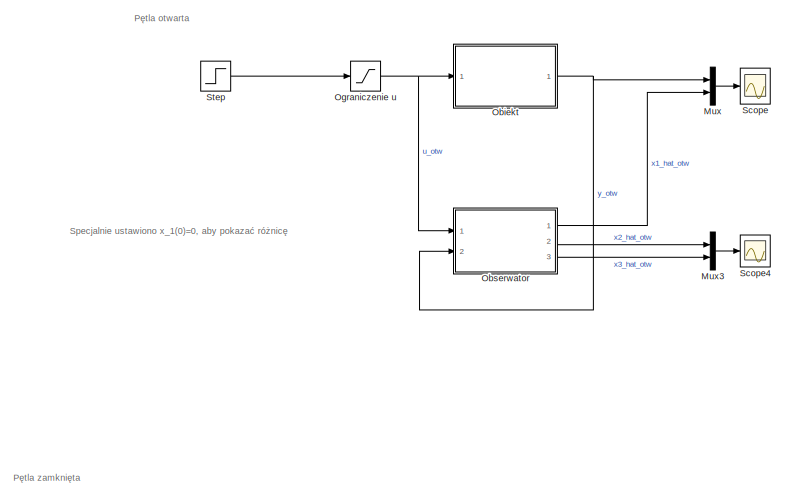
[diagram: root canvas - part 1/3, top center region]
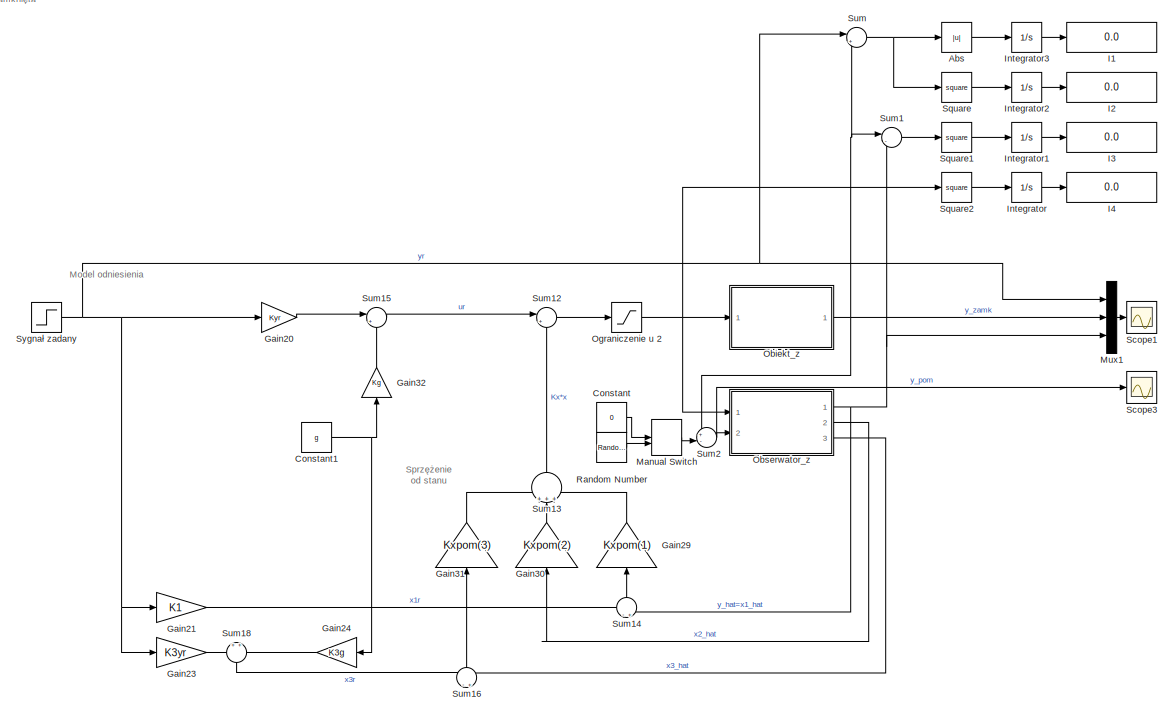
[diagram: root canvas - part 2/3, full width, middle band]
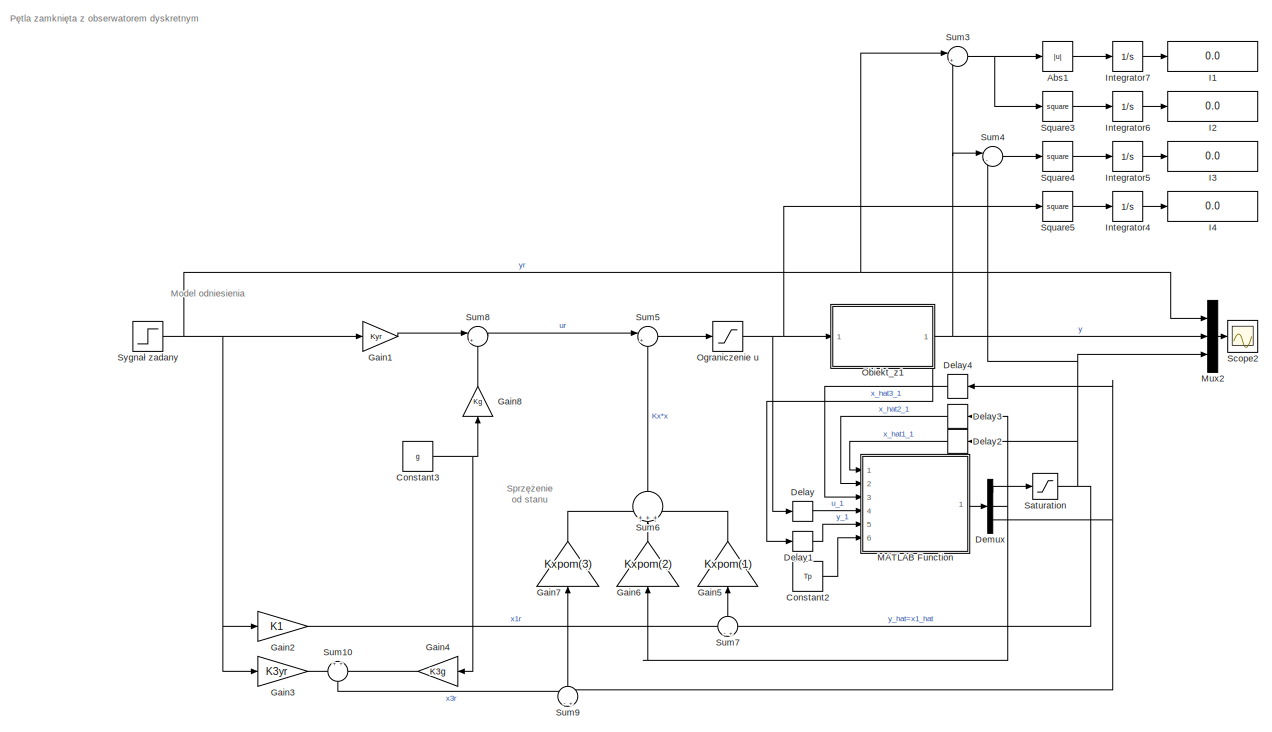
[diagram: root canvas - part 3/3, full width, bottom band]
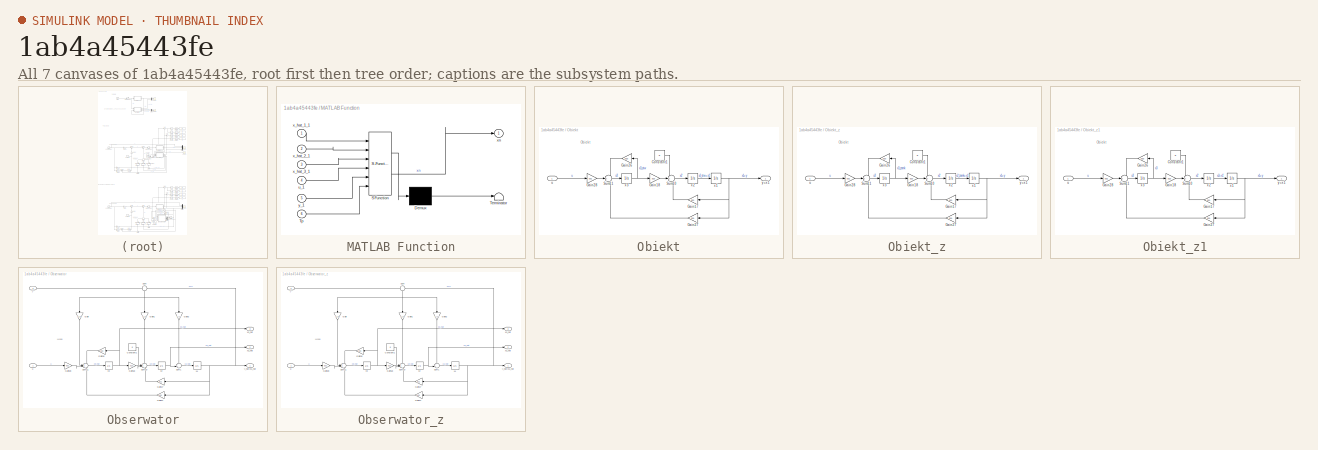
[diagram: thumbnail index - all 7 canvases of the model, root first then tree order]
MODEL slx_1ab4a45443fe
KIND model
CONFIG AbsTol = auto
CONFIG EnableMultiTasking = off
CONFIG FixedStep = auto
CONFIG MaxStep = auto
CONFIG MinStep = auto
CONFIG RelTol = 1e-3
CONFIG SampleTimeConstraint = Unconstrained
CONFIG SolverName = VariableStepAuto
CONFIG StartTime = 0.0
CONFIG StopTime = 10.0
WORKSPACE source: mxarray member
WORKSPACE A = [0 3198.8547998 0 1 0 0 0 -49.6726703592 -186.260159523]
WORKSPACE B = [0 0 468.723691441 0 9.81 0]
WORKSPACE C = [1 0 0]
WORKSPACE D = [0 0]
WORKSPACE L = [113.739840477 12013.6539685 12921.50985]
WORKSPACE Tp = 0.01
BLOCK [Step]  Sygnał zadany
  After = 0.008
  SampleTime = 0
  Time = 0
BLOCK [Step]  Sygnał zadany  
  After = 0.008
  SampleTime = 0
  Time = 0
BLOCK [Abs] Abs
  SaturateOnIntegerOverflow = off
BLOCK [Abs] Abs1
  SaturateOnIntegerOverflow = off
BLOCK [Constant] Constant
  Value = 0
BLOCK [Constant] Constant1
  Value = g
BLOCK [Constant] Constant2
  Value = Tp
BLOCK [Constant] Constant3
  Value = g
BLOCK [Delay] Delay
  DelayLength = 1
  InputPortMap = u0
  Ports = [1, 1]
BLOCK [Delay] Delay1
  DelayLength = 1
  InputPortMap = u0
  Ports = [1, 1]
BLOCK [Delay] Delay2
  DelayLength = 1
  InitialCondition = xd
  InputPortMap = u0
  NameLocation = top
  Ports = [1, 1]
BLOCK [Delay] Delay3
  DelayLength = 1
  InputPortMap = u0
  NameLocation = top
  Ports = [1, 1]
BLOCK [Delay] Delay4
  DelayLength = 1
  InputPortMap = u0
  NameLocation = top
  Ports = [1, 1]
BLOCK [Demux] Demux
  Outputs = 3
  Ports = [1, 3]
BLOCK [Gain] Gain1
  Gain = Kyr
BLOCK [Gain] Gain2
  Gain = K1
BLOCK [Gain] Gain20
  Gain = Kyr
BLOCK [Gain] Gain21
  Gain = K1
BLOCK [Gain] Gain23
  Gain = K3yr
BLOCK [Gain] Gain24
  Gain = K3g
  NameLocation = top
BLOCK [Gain] Gain29
  Gain = Kxpom(1)
  NameLocation = right
BLOCK [Gain] Gain3
  Gain = K3yr
BLOCK [Gain] Gain30
  Gain = Kxpom(2)
  NameLocation = right
BLOCK [Gain] Gain31
  Gain = Kxpom(3)
  NameLocation = right
BLOCK [Gain] Gain32
  Gain = Kg
  NameLocation = right
BLOCK [Gain] Gain4
  Gain = K3g
  NameLocation = top
BLOCK [Gain] Gain5
  Gain = Kxpom(1)
  NameLocation = right
BLOCK [Gain] Gain6
  Gain = Kxpom(2)
  NameLocation = right
BLOCK [Gain] Gain7
  Gain = Kxpom(3)
  NameLocation = right
BLOCK [Gain] Gain8
  Gain = Kg
  NameLocation = right
BLOCK [Display] I1
  Decimation = 1
  Ports = [1]
BLOCK [Display] I1 
  Decimation = 1
  Ports = [1]
BLOCK [Display] I2
  Decimation = 1
  Ports = [1]
BLOCK [Display] I2 
  Decimation = 1
  Ports = [1]
BLOCK [Display] I3
  Decimation = 1
  Ports = [1]
BLOCK [Display] I3 
  Decimation = 1
  Ports = [1]
BLOCK [Display] I4
  Decimation = 1
  Ports = [1]
BLOCK [Display] I4 
  Decimation = 1
  Ports = [1]
BLOCK [Integrator] Integrator
  Ports = [1, 1]
BLOCK [Integrator] Integrator1
  Ports = [1, 1]
BLOCK [Integrator] Integrator2
  Ports = [1, 1]
BLOCK [Integrator] Integrator3
  Ports = [1, 1]
BLOCK [Integrator] Integrator4
  Ports = [1, 1]
BLOCK [Integrator] Integrator5
  Ports = [1, 1]
BLOCK [Integrator] Integrator6
  Ports = [1, 1]
BLOCK [Integrator] Integrator7
  Ports = [1, 1]
BLOCK [SubSystem] MATLAB Function
  ErrorFcn = Stateflow.Translate.translate
  PermitHierarchicalResolution = ExplicitOnly
  Ports = [6, 1]
  RequestExecContextInheritance = off
  SFBlockType = MATLAB Function
  TreatAsAtomicUnit = on
BLOCK [Demux] MATLAB Function/ Demux 
  Outputs = 1
  Ports = [1, 1]
BLOCK [S-Function] MATLAB Function/ SFunction 
  EnableBusSupport = on
  FunctionName = sf_sfun
  PortCounts = [6 2]
  Ports = [6, 2]
  SFcnIsStateOwnerBlock = off
  SFunctionDeploymentMode = off
  Tag = Stateflow S-Function 2
BLOCK [Terminator] MATLAB Function/ Terminator 
BLOCK [Inport] MATLAB Function/Tp
  Port = 6
BLOCK [Inport] MATLAB Function/u_1
  Port = 4
BLOCK [Inport] MATLAB Function/x_hat_1_1
BLOCK [Inport] MATLAB Function/x_hat_2_1
  Port = 2
BLOCK [Inport] MATLAB Function/x_hat_3_1
  Port = 3
BLOCK [Outport] MATLAB Function/xn
BLOCK [Inport] MATLAB Function/y_1
  Port = 5
BLOCK [ManualSwitch] Manual Switch
  CurrentSetting = 0
BLOCK [Mux] Mux
  DisplayOption = bar
  Inputs = 2
  Ports = [2, 1]
BLOCK [Mux] Mux1
  DisplayOption = bar
  Inputs = 3
  Ports = [3, 1]
BLOCK [Mux] Mux2
  DisplayOption = bar
  Inputs = 3
  Ports = [3, 1]
BLOCK [Mux] Mux3
  DisplayOption = bar
  Inputs = 2
  Ports = [2, 1]
BLOCK [SubSystem] Obiekt
  Ports = [1, 1]
  RequestExecContextInheritance = off
BLOCK [Integrator] Obiekt/ x1
  InitialCondition = xd
  LimitOutput = on
  LowerSaturationLimit = 0
  Ports = [1, 1]
  UpperSaturationLimit = xd
BLOCK [Integrator] Obiekt/ x2
  Ports = [1, 1]
BLOCK [Integrator] Obiekt/ x3
  Ports = [1, 1]
BLOCK [Constant] Obiekt/Constant1
  Value = g
BLOCK [Gain] Obiekt/Gain17
  Gain = a21
  NameLocation = top
BLOCK [Gain] Obiekt/Gain18
  Gain = a23
BLOCK [Gain] Obiekt/Gain26
  Gain = a33
  NameLocation = top
BLOCK [Gain] Obiekt/Gain27
  Gain = a31
  NameLocation = top
BLOCK [Gain] Obiekt/Gain28
  Gain = b31
BLOCK [Sum] Obiekt/Sum10
  Inputs = +++
  Ports = [3, 1]
BLOCK [Sum] Obiekt/Sum11
  Inputs = +++
  Ports = [3, 1]
BLOCK [Inport] Obiekt/u
BLOCK [Outport] Obiekt/y=x1
BLOCK [SubSystem] Obiekt_z
  Ports = [1, 1]
  RequestExecContextInheritance = off
BLOCK [Integrator] Obiekt_z/ x1
  InitialCondition = xd
  LimitOutput = on
  LowerSaturationLimit = 0
  Ports = [1, 1]
  UpperSaturationLimit = xd
BLOCK [Integrator] Obiekt_z/ x2
  Ports = [1, 1]
BLOCK [Integrator] Obiekt_z/ x3
  Ports = [1, 1]
BLOCK [Constant] Obiekt_z/Constant1
  Value = g
BLOCK [Gain] Obiekt_z/Gain17
  Gain = a21
  NameLocation = top
BLOCK [Gain] Obiekt_z/Gain18
  Gain = a23
BLOCK [Gain] Obiekt_z/Gain26
  Gain = a33
  NameLocation = top
BLOCK [Gain] Obiekt_z/Gain27
  Gain = a31
  NameLocation = top
BLOCK [Gain] Obiekt_z/Gain28
  Gain = b31
BLOCK [Sum] Obiekt_z/Sum10
  Inputs = +++
  Ports = [3, 1]
BLOCK [Sum] Obiekt_z/Sum11
  Inputs = +++
  Ports = [3, 1]
BLOCK [Inport] Obiekt_z/u
BLOCK [Outport] Obiekt_z/y=x1
BLOCK [SubSystem] Obiekt_z1
  Ports = [1, 1]
  RequestExecContextInheritance = off
BLOCK [Integrator] Obiekt_z1/ x1
  InitialCondition = xd
  LimitOutput = on
  LowerSaturationLimit = 0
  Ports = [1, 1]
  UpperSaturationLimit = xd
BLOCK [Integrator] Obiekt_z1/ x2
  Ports = [1, 1]
BLOCK [Integrator] Obiekt_z1/ x3
  Ports = [1, 1]
BLOCK [Constant] Obiekt_z1/Constant1
  Value = g
BLOCK [Gain] Obiekt_z1/Gain17
  Gain = a21
  NameLocation = top
BLOCK [Gain] Obiekt_z1/Gain18
  Gain = a23
BLOCK [Gain] Obiekt_z1/Gain26
  Gain = a33
  NameLocation = top
BLOCK [Gain] Obiekt_z1/Gain27
  Gain = a31
  NameLocation = top
BLOCK [Gain] Obiekt_z1/Gain28
  Gain = b31
BLOCK [Sum] Obiekt_z1/Sum10
  Inputs = +++
  Ports = [3, 1]
BLOCK [Sum] Obiekt_z1/Sum11
  Inputs = +++
  Ports = [3, 1]
BLOCK [Inport] Obiekt_z1/u
BLOCK [Outport] Obiekt_z1/y=x1
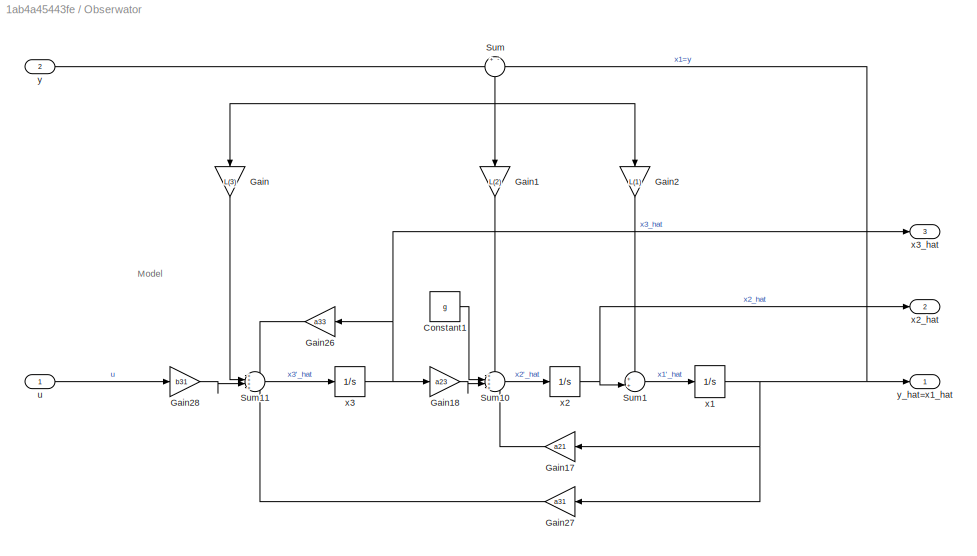
BLOCK [SubSystem] Obserwator
  Ports = [2, 3]
  RequestExecContextInheritance = off
BLOCK [Integrator] Obserwator/ x1
  LimitOutput = on
  LowerSaturationLimit = 0
  Ports = [1, 1]
  UpperSaturationLimit = xd
BLOCK [Integrator] Obserwator/ x2
  Ports = [1, 1]
BLOCK [Integrator] Obserwator/ x3
  Ports = [1, 1]
BLOCK [Constant] Obserwator/Constant1
  Value = g
BLOCK [Gain] Obserwator/Gain
  Gain = L(3)
  NameLocation = left
BLOCK [Gain] Obserwator/Gain1
  Gain = L(2)
  NameLocation = left
BLOCK [Gain] Obserwator/Gain17
  Gain = a21
  NameLocation = top
BLOCK [Gain] Obserwator/Gain18
  Gain = a23
BLOCK [Gain] Obserwator/Gain2
  Gain = L(1)
  NameLocation = left
BLOCK [Gain] Obserwator/Gain26
  Gain = a33
  NameLocation = top
BLOCK [Gain] Obserwator/Gain27
  Gain = a31
  NameLocation = top
BLOCK [Gain] Obserwator/Gain28
  Gain = b31
BLOCK [Sum] Obserwator/Sum
  Inputs = +-
  NameLocation = left
  Ports = [2, 1]
BLOCK [Sum] Obserwator/Sum1
  Inputs = ++|
  Ports = [2, 1]
BLOCK [Sum] Obserwator/Sum10
  Inputs = ++++
  Ports = [4, 1]
BLOCK [Sum] Obserwator/Sum11
  Inputs = ++++
  Ports = [4, 1]
BLOCK [Inport] Obserwator/u
BLOCK [Outport] Obserwator/x2_hat
  Port = 2
BLOCK [Outport] Obserwator/x3_hat
  Port = 3
BLOCK [Inport] Obserwator/y
  Port = 2
BLOCK [Outport] Obserwator/y_hat=x1_hat
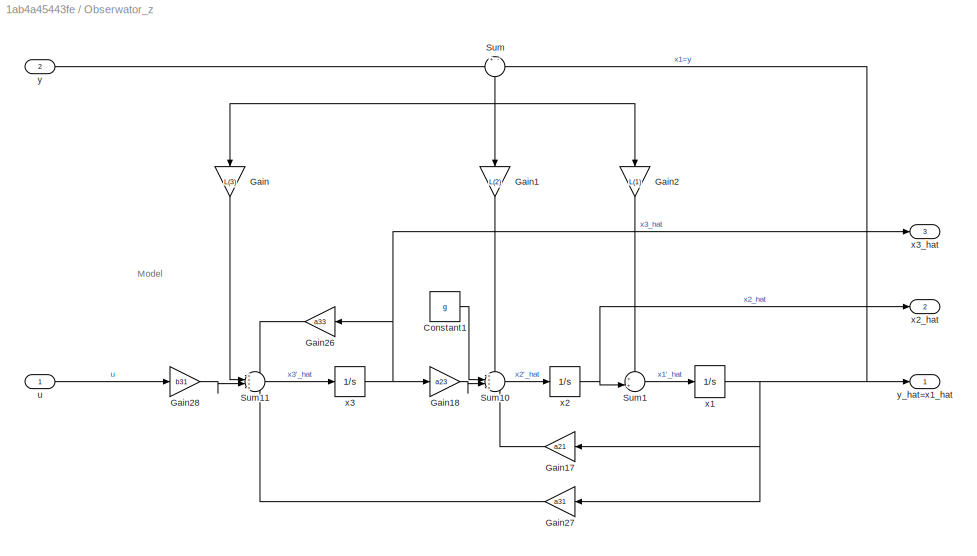
BLOCK [SubSystem] Obserwator_z
  Ports = [2, 3]
  RequestExecContextInheritance = off
BLOCK [Integrator] Obserwator_z/ x1
  InitialCondition = xd
  LimitOutput = on
  LowerSaturationLimit = 0
  Ports = [1, 1]
  UpperSaturationLimit = xd
BLOCK [Integrator] Obserwator_z/ x2
  Ports = [1, 1]
BLOCK [Integrator] Obserwator_z/ x3
  Ports = [1, 1]
BLOCK [Constant] Obserwator_z/Constant1
  Value = g
BLOCK [Gain] Obserwator_z/Gain
  Gain = L(3)
  NameLocation = left
BLOCK [Gain] Obserwator_z/Gain1
  Gain = L(2)
  NameLocation = left
BLOCK [Gain] Obserwator_z/Gain17
  Gain = a21
  NameLocation = top
BLOCK [Gain] Obserwator_z/Gain18
  Gain = a23
BLOCK [Gain] Obserwator_z/Gain2
  Gain = L(1)
  NameLocation = left
BLOCK [Gain] Obserwator_z/Gain26
  Gain = a33
  NameLocation = top
BLOCK [Gain] Obserwator_z/Gain27
  Gain = a31
  NameLocation = top
BLOCK [Gain] Obserwator_z/Gain28
  Gain = b31
BLOCK [Sum] Obserwator_z/Sum
  Inputs = +-
  NameLocation = left
  Ports = [2, 1]
BLOCK [Sum] Obserwator_z/Sum1
  Inputs = ++|
  Ports = [2, 1]
BLOCK [Sum] Obserwator_z/Sum10
  Inputs = ++++
  Ports = [4, 1]
BLOCK [Sum] Obserwator_z/Sum11
  Inputs = ++++
  Ports = [4, 1]
BLOCK [Inport] Obserwator_z/u
BLOCK [Outport] Obserwator_z/x2_hat
  Port = 2
BLOCK [Outport] Obserwator_z/x3_hat
  Port = 3
BLOCK [Inport] Obserwator_z/y
  Port = 2
BLOCK [Outport] Obserwator_z/y_hat=x1_hat
BLOCK [Saturate] Ograniczenie u 
  LowerLimit = 0
  UpperLimit = 1
  ZeroCross = off
BLOCK [Saturate] Ograniczenie u  
  LowerLimit = 0
  UpperLimit = 1
  ZeroCross = off
BLOCK [Saturate] Ograniczenie u 2
  LowerLimit = 0
  UpperLimit = 1
  ZeroCross = off
BLOCK [RandomNumber] Random Number
  SampleTime = 0.0001
  Variance = 0.0000001
BLOCK [Saturate] Saturation
  LowerLimit = 0
  UpperLimit = xd
BLOCK [Scope] Scope
  Floating = off
  NumInputPorts = 1
  Ports = [1]
  ScopeSpecificationString = Simulink.scopes.TimeScopeBlockCfg('CurrentConfiguration', extmgr.ConfigurationSet(extmgr.Configuration('Core','General UI',true),extmgr.Configuration('Core','Source UI',true),extmgr.Configuration('Sources','WiredSimulink',true),extmgr.Configuration('Visuals','Time Domain',true,'SerializedDisplays',{struct('MinYLimReal','-0.00166','MaxYLimReal','0.01492','YLabelReal','','MinYLimMag','0.00000','MaxY...<+1411ch>
BLOCK [Scope] Scope1
  Floating = off
  NumInputPorts = 1
  Ports = [1]
  ScopeSpecificationString = Simulink.scopes.TimeScopeBlockCfg('CurrentConfiguration', extmgr.ConfigurationSet(extmgr.Configuration('Core','General UI',true),extmgr.Configuration('Core','Source UI',true),extmgr.Configuration('Sources','WiredSimulink',true,'DataLoggingVariableName','ScopeData1'),extmgr.Configuration('Visuals','Time Domain',true,'SerializedDisplays',{struct('MinYLimReal','0.00682','MaxYLimReal','0.01398','YLabe...<+1456ch>
BLOCK [Scope] Scope2
  Floating = off
  NumInputPorts = 1
  Ports = [1]
  ScopeSpecificationString = Simulink.scopes.TimeScopeBlockCfg('CurrentConfiguration', extmgr.ConfigurationSet(extmgr.Configuration('Core','General UI',true),extmgr.Configuration('Core','Source UI',true),extmgr.Configuration('Sources','WiredSimulink',true,'DataLoggingVariableName','ScopeData1'),extmgr.Configuration('Visuals','Time Domain',true,'SerializedDisplays',{struct('MinYLimReal','0.00761','MaxYLimReal','0.01358','YLabe...<+1451ch>
BLOCK [Scope] Scope3
  Floating = off
  NumInputPorts = 1
  Ports = [1]
  ScopeSpecificationString = Simulink.scopes.TimeScopeBlockCfg('CurrentConfiguration', extmgr.ConfigurationSet(extmgr.Configuration('Core','General UI',true),extmgr.Configuration('Core','Source UI',true),extmgr.Configuration('Sources','WiredSimulink',true,'DataLoggingVariableName','ScopeData1'),extmgr.Configuration('Visuals','Time Domain',true,'SerializedDisplays',{struct('MinYLimReal','0.0053','MaxYLimReal','0.01515','YLabel...<+1406ch>
BLOCK [Scope] Scope4
  Floating = off
  NumInputPorts = 1
  Ports = [1]
  ScopeSpecificationString = Simulink.scopes.TimeScopeBlockCfg('CurrentConfiguration', extmgr.ConfigurationSet(extmgr.Configuration('Core','General UI',true),extmgr.Configuration('Core','Source UI',true),extmgr.Configuration('Sources','WiredSimulink',true,'DataLoggingVariableName','ScopeData1'),extmgr.Configuration('Visuals','Time Domain',true,'SerializedDisplays',{struct('MinYLimReal','-1294.17655','MaxYLimReal','146.59351',...<+1402ch>
BLOCK [Math] Square
  Operator = square
  Ports = [1, 1]
BLOCK [Math] Square1
  Operator = square
  Ports = [1, 1]
BLOCK [Math] Square2
  Operator = square
  Ports = [1, 1]
BLOCK [Math] Square3
  Operator = square
  Ports = [1, 1]
BLOCK [Math] Square4
  Operator = square
  Ports = [1, 1]
BLOCK [Math] Square5
  Operator = square
  Ports = [1, 1]
BLOCK [Step] Step
  SampleTime = 0
  Time = 0
BLOCK [Sum] Sum
  Inputs = |+-
  Ports = [2, 1]
BLOCK [Sum] Sum1
  Inputs = |-+
  Ports = [2, 1]
BLOCK [Sum] Sum10
  NameLocation = left
  Ports = [2, 1]
BLOCK [Sum] Sum12
  Inputs = |+-
  Ports = [2, 1]
BLOCK [Sum] Sum13
  Inputs = +++
  NameLocation = right
  Ports = [3, 1]
BLOCK [Sum] Sum14
  Inputs = -+
  NameLocation = right
  Ports = [2, 1]
BLOCK [Sum] Sum15
  Inputs = |++
  Ports = [2, 1]
BLOCK [Sum] Sum16
  Inputs = -+
  NameLocation = right
  Ports = [2, 1]
BLOCK [Sum] Sum18
  NameLocation = left
  Ports = [2, 1]
BLOCK [Sum] Sum2
  Inputs = +-|
  Ports = [2, 1]
BLOCK [Sum] Sum3
  Inputs = |+-
  Ports = [2, 1]
BLOCK [Sum] Sum4
  Inputs = |-+
  Ports = [2, 1]
BLOCK [Sum] Sum5
  Inputs = |+-
  Ports = [2, 1]
BLOCK [Sum] Sum6
  Inputs = +++
  NameLocation = right
  Ports = [3, 1]
BLOCK [Sum] Sum7
  Inputs = -+
  NameLocation = right
  Ports = [2, 1]
BLOCK [Sum] Sum8
  Inputs = |++
  Ports = [2, 1]
BLOCK [Sum] Sum9
  Inputs = -+
  NameLocation = right
  Ports = [2, 1]
ANNOTATION (root): Model odniesienia
ANNOTATION (root): Pętla otwarta
ANNOTATION (root): Pętla zamknięta
ANNOTATION (root): Pętla zamknięta z obserwatorem dyskretnym
ANNOTATION (root): Specjalnie ustawiono x_1(0)=0, aby pokazać różnicę
ANNOTATION (root): Sprzężenie od stanu
ANNOTATION Obiekt: Obiekt
ANNOTATION Obiekt_z: Obiekt
ANNOTATION Obiekt_z1: Obiekt
ANNOTATION Obserwator: Model
ANNOTATION Obserwator_z: Model
NET  Sygnał zadany  :1 -> Gain1:1, Gain2:1, Gain3:1, Mux2:1, Sum3:1
NET  Sygnał zadany:1 -> Gain20:1, Gain21:1, Gain23:1, Mux1:1, Sum:1
LINE Abs1:1 -> Integrator7:1
LINE Abs:1 -> Integrator3:1
NET Constant1:1 -> Gain24:1, Gain32:1
LINE Constant2:1 -> MATLAB Function:6
NET Constant3:1 -> Gain4:1, Gain8:1
LINE Constant:1 -> Manual Switch:1
LINE Delay1:1 -> MATLAB Function:5
LINE Delay2:1 -> MATLAB Function:1
LINE Delay3:1 -> MATLAB Function:2
LINE Delay4:1 -> MATLAB Function:3
LINE Delay:1 -> MATLAB Function:4
LINE Demux:1 -> Saturation:1
NET Demux:2 -> Delay3:1, Gain6:1
NET Demux:3 -> Delay4:1, Sum9:2
LINE Gain1:1 -> Sum8:1
LINE Gain20:1 -> Sum15:1
LINE Gain21:1 -> Sum14:1
LINE Gain23:1 -> Sum18:1
LINE Gain24:1 -> Sum18:2
LINE Gain29:1 -> Sum13:3
LINE Gain2:1 -> Sum7:1
LINE Gain30:1 -> Sum13:2
LINE Gain31:1 -> Sum13:1
LINE Gain32:1 -> Sum15:2
LINE Gain3:1 -> Sum10:1
LINE Gain4:1 -> Sum10:2
LINE Gain5:1 -> Sum6:3
LINE Gain6:1 -> Sum6:2
LINE Gain7:1 -> Sum6:1
LINE Gain8:1 -> Sum8:2
LINE Integrator1:1 -> I3:1
LINE Integrator2:1 -> I2:1
LINE Integrator3:1 -> I1:1
LINE Integrator4:1 -> I4 :1
LINE Integrator5:1 -> I3 :1
LINE Integrator6:1 -> I2 :1
LINE Integrator7:1 -> I1 :1
LINE Integrator:1 -> I4:1
LINE MATLAB Function:1 -> Demux:1
LINE Manual Switch:1 -> Sum2:2
LINE Mux1:1 -> Scope1:1
LINE Mux2:1 -> Scope2:1
LINE Mux3:1 -> Scope4:1
LINE Mux:1 -> Scope:1
NET Obiekt/ x1:1 -> Obiekt/Gain17:1, Obiekt/Gain27:1, Obiekt/y=x1:1
LINE Obiekt/ x2:1 -> Obiekt/ x1:1
NET Obiekt/ x3:1 -> Obiekt/Gain18:1, Obiekt/Gain26:1
LINE Obiekt/Constant1:1 -> Obiekt/Sum10:1
LINE Obiekt/Gain17:1 -> Obiekt/Sum10:3
LINE Obiekt/Gain18:1 -> Obiekt/Sum10:2
LINE Obiekt/Gain26:1 -> Obiekt/Sum11:1
LINE Obiekt/Gain27:1 -> Obiekt/Sum11:3
LINE Obiekt/Gain28:1 -> Obiekt/Sum11:2
LINE Obiekt/Sum10:1 -> Obiekt/ x2:1
LINE Obiekt/Sum11:1 -> Obiekt/ x3:1
LINE Obiekt/u:1 -> Obiekt/Gain28:1
NET Obiekt:1 -> Mux:1, Obserwator:2
NET Obiekt_z/ x1:1 -> Obiekt_z/Gain17:1, Obiekt_z/Gain27:1, Obiekt_z/y=x1:1
LINE Obiekt_z/ x2:1 -> Obiekt_z/ x1:1
NET Obiekt_z/ x3:1 -> Obiekt_z/Gain18:1, Obiekt_z/Gain26:1
LINE Obiekt_z/Constant1:1 -> Obiekt_z/Sum10:1
LINE Obiekt_z/Gain17:1 -> Obiekt_z/Sum10:3
LINE Obiekt_z/Gain18:1 -> Obiekt_z/Sum10:2
LINE Obiekt_z/Gain26:1 -> Obiekt_z/Sum11:1
LINE Obiekt_z/Gain27:1 -> Obiekt_z/Sum11:3
LINE Obiekt_z/Gain28:1 -> Obiekt_z/Sum11:2
LINE Obiekt_z/Sum10:1 -> Obiekt_z/ x2:1
LINE Obiekt_z/Sum11:1 -> Obiekt_z/ x3:1
LINE Obiekt_z/u:1 -> Obiekt_z/Gain28:1
NET Obiekt_z1/ x1:1 -> Obiekt_z1/Gain17:1, Obiekt_z1/Gain27:1, Obiekt_z1/y=x1:1
LINE Obiekt_z1/ x2:1 -> Obiekt_z1/ x1:1
NET Obiekt_z1/ x3:1 -> Obiekt_z1/Gain18:1, Obiekt_z1/Gain26:1
LINE Obiekt_z1/Constant1:1 -> Obiekt_z1/Sum10:1
LINE Obiekt_z1/Gain17:1 -> Obiekt_z1/Sum10:3
LINE Obiekt_z1/Gain18:1 -> Obiekt_z1/Sum10:2
LINE Obiekt_z1/Gain26:1 -> Obiekt_z1/Sum11:1
LINE Obiekt_z1/Gain27:1 -> Obiekt_z1/Sum11:3
LINE Obiekt_z1/Gain28:1 -> Obiekt_z1/Sum11:2
LINE Obiekt_z1/Sum10:1 -> Obiekt_z1/ x2:1
LINE Obiekt_z1/Sum11:1 -> Obiekt_z1/ x3:1
LINE Obiekt_z1/u:1 -> Obiekt_z1/Gain28:1
NET Obiekt_z1:1 -> Delay1:1, Mux2:2, Sum3:2, Sum4:1
NET Obiekt_z:1 -> Mux1:2, Sum1:1, Sum2:1, Sum:2
NET Obserwator/ x1:1 -> Obserwator/Gain17:1, Obserwator/Gain27:1, Obserwator/Sum:2, Obserwator/y_hat=x1_hat:1
NET Obserwator/ x2:1 -> Obserwator/Sum1:2, Obserwator/x2_hat:1
NET Obserwator/ x3:1 -> Obserwator/Gain18:1, Obserwator/Gain26:1, Obserwator/x3_hat:1
LINE Obserwator/Constant1:1 -> Obserwator/Sum10:2
LINE Obserwator/Gain17:1 -> Obserwator/Sum10:4
LINE Obserwator/Gain18:1 -> Obserwator/Sum10:3
LINE Obserwator/Gain1:1 -> Obserwator/Sum10:1
LINE Obserwator/Gain26:1 -> Obserwator/Sum11:1
LINE Obserwator/Gain27:1 -> Obserwator/Sum11:4
LINE Obserwator/Gain28:1 -> Obserwator/Sum11:3
LINE Obserwator/Gain2:1 -> Obserwator/Sum1:1
LINE Obserwator/Gain:1 -> Obserwator/Sum11:2
LINE Obserwator/Sum10:1 -> Obserwator/ x2:1
LINE Obserwator/Sum11:1 -> Obserwator/ x3:1
LINE Obserwator/Sum1:1 -> Obserwator/ x1:1
NET Obserwator/Sum:1 -> Obserwator/Gain1:1, Obserwator/Gain2:1, Obserwator/Gain:1
LINE Obserwator/u:1 -> Obserwator/Gain28:1
LINE Obserwator/y:1 -> Obserwator/Sum:1
LINE Obserwator:1 -> Mux:2
LINE Obserwator:2 -> Mux3:1
LINE Obserwator:3 -> Mux3:2
NET Obserwator_z/ x1:1 -> Obserwator_z/Gain17:1, Obserwator_z/Gain27:1, Obserwator_z/Sum:2, Obserwator_z/y_hat=x1_hat:1
NET Obserwator_z/ x2:1 -> Obserwator_z/Sum1:2, Obserwator_z/x2_hat:1
NET Obserwator_z/ x3:1 -> Obserwator_z/Gain18:1, Obserwator_z/Gain26:1, Obserwator_z/x3_hat:1
LINE Obserwator_z/Constant1:1 -> Obserwator_z/Sum10:2
LINE Obserwator_z/Gain17:1 -> Obserwator_z/Sum10:4
LINE Obserwator_z/Gain18:1 -> Obserwator_z/Sum10:3
LINE Obserwator_z/Gain1:1 -> Obserwator_z/Sum10:1
LINE Obserwator_z/Gain26:1 -> Obserwator_z/Sum11:1
LINE Obserwator_z/Gain27:1 -> Obserwator_z/Sum11:4
LINE Obserwator_z/Gain28:1 -> Obserwator_z/Sum11:3
LINE Obserwator_z/Gain2:1 -> Obserwator_z/Sum1:1
LINE Obserwator_z/Gain:1 -> Obserwator_z/Sum11:2
LINE Obserwator_z/Sum10:1 -> Obserwator_z/ x2:1
LINE Obserwator_z/Sum11:1 -> Obserwator_z/ x3:1
LINE Obserwator_z/Sum1:1 -> Obserwator_z/ x1:1
NET Obserwator_z/Sum:1 -> Obserwator_z/Gain1:1, Obserwator_z/Gain2:1, Obserwator_z/Gain:1
LINE Obserwator_z/u:1 -> Obserwator_z/Gain28:1
LINE Obserwator_z/y:1 -> Obserwator_z/Sum:1
NET Obserwator_z:1 -> Mux1:3, Sum14:2, Sum1:2
LINE Obserwator_z:2 -> Gain30:1
LINE Obserwator_z:3 -> Sum16:2
NET Ograniczenie u  :1 -> Delay:1, Obiekt_z1:1, Square5:1
NET Ograniczenie u 2:1 -> Obiekt_z:1, Obserwator_z:1, Square2:1
NET Ograniczenie u :1 -> Obiekt:1, Obserwator:1
LINE Random Number:1 -> Manual Switch:2
NET Saturation:1 -> Delay2:1, Mux2:3, Sum4:2, Sum7:2
LINE Square1:1 -> Integrator1:1
LINE Square2:1 -> Integrator:1
LINE Square3:1 -> Integrator6:1
LINE Square4:1 -> Integrator5:1
LINE Square5:1 -> Integrator4:1
LINE Square:1 -> Integrator2:1
LINE Step:1 -> Ograniczenie u :1
LINE Sum10:1 -> Sum9:1
LINE Sum12:1 -> Ograniczenie u 2:1
LINE Sum13:1 -> Sum12:2
LINE Sum14:1 -> Gain29:1
LINE Sum15:1 -> Sum12:1
LINE Sum16:1 -> Gain31:1
LINE Sum18:1 -> Sum16:1
LINE Sum1:1 -> Square1:1
NET Sum2:1 -> Obserwator_z:2, Scope3:1
NET Sum3:1 -> Abs1:1, Square3:1
LINE Sum4:1 -> Square4:1
LINE Sum5:1 -> Ograniczenie u  :1
LINE Sum6:1 -> Sum5:2
LINE Sum7:1 -> Gain5:1
LINE Sum8:1 -> Sum5:1
LINE Sum9:1 -> Gain7:1
NET Sum:1 -> Abs:1, Square:1
note: NET lines group one-source signal fan-out (src -> all destinations, sorted); 1:1 wires keep LINE
CHART MATLAB Function states=1 transitions=1
  STATE_LABEL 'eML_blk_kernel()'
  STATE_LABEL 'SCRIPT:\nfunction xn=dyskretny_obserwator(x_hat_1_1, x_hat_2_1, x_hat_3_1, u_1, y_1,Tp)\n%funkcja bedaca dyskretnym obserwatorem stanu\nA=[0,1,0;3.198854799795517e+03,0,-49.672670359171390;0,0,-1.862601595234874e+02];\nB=[0,0;0,9.810000000000000;4.687236914408560e+02,0];\nC=[1,0,0];\nL=[113.739840476513; 12013.6539684643; 12921.5098500384];\n\nTp1=Tp;\n\nu_pom=[u_1; 1];\nx_hat1=[x_hat_1_1; x_hat_2_1; x_hat_3...<+93ch>'
CHART  states=0 transitions=0
